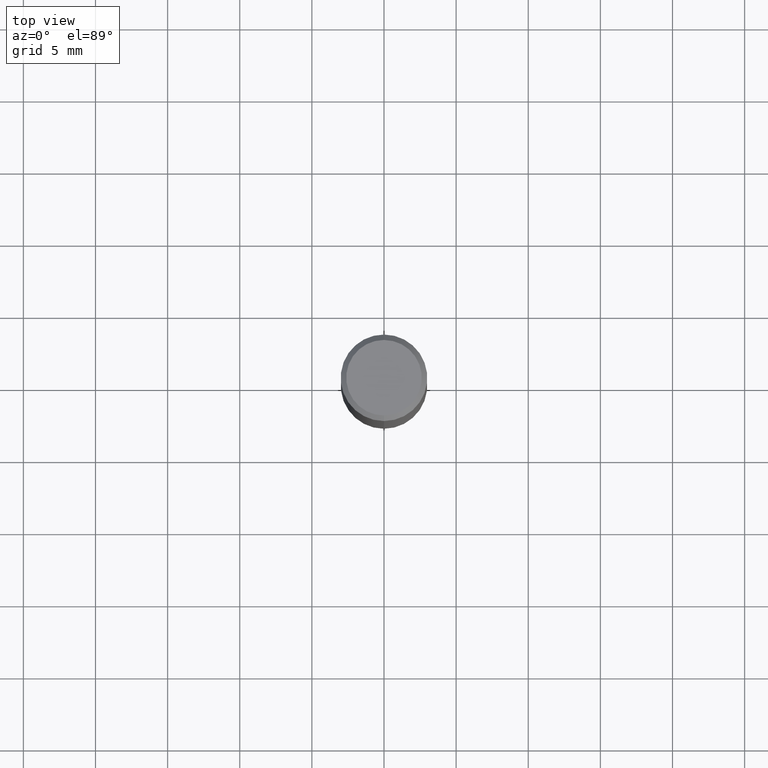
[diagram: clean part render]
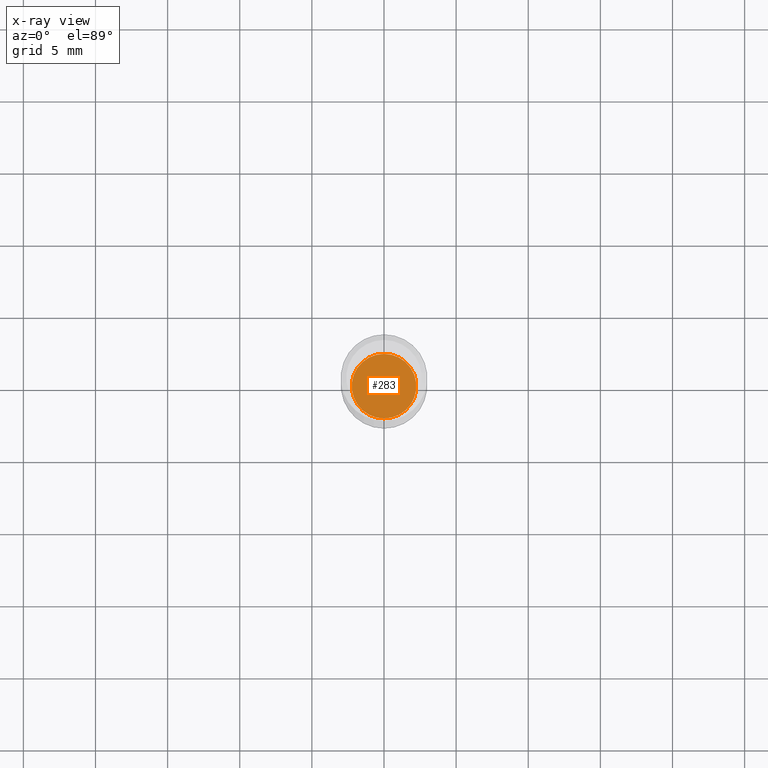
[diagram: x-ray — body ghosted, one internal face saturated and labeled with its STEP entity id]
A machine part, top view, then the same camera in x-ray: the body is ghosted and one INTERNAL B-rep face — a face not visible from any outside direction — is saturated and labeled: STEP entity #283.
In plain terms, the highlighted planar face has unit normal (-0, 0, 1).
Its self-contained STEP definition (entity closure, byte-faithful):
#28 = CARTESIAN_POINT ( 'NONE',  ( 3.274076452005480614E-29, -4.672877915302496500E-15, -1.338600000000000012 ) ) ;
#32 = AXIS2_PLACEMENT_3D ( 'NONE', #28, #303, #378 ) ;
#44 = DIRECTION ( 'NONE',  ( -2.445896049608158074E-29, 3.490869501944193410E-15, 1.000000000000000000 ) ) ;
#46 = CARTESIAN_POINT ( 'NONE',  ( -6.151990119041272080E-16, -0.08810000000000467457, -1.338599999999999790 ) ) ;
#51 = VERTEX_POINT ( 'NONE', #46 ) ;
#59 = FACE_OUTER_BOUND ( 'NONE', #296, .T. ) ;
#79 = CARTESIAN_POINT ( 'NONE',  ( 3.274076452005480614E-29, -4.672877915302496500E-15, -1.338600000000000012 ) ) ;
#111 = VERTEX_POINT ( 'NONE', #397 ) ;
#112 = CIRCLE ( 'NONE', #233, 0.08809999999999999776 ) ;
#118 = DIRECTION ( 'NONE',  ( -2.445896049608158074E-29, 3.490869501944193410E-15, 1.000000000000000000 ) ) ;
#135 = EDGE_CURVE ( 'NONE', #51, #111, #112, .T. ) ;
#139 = ORIENTED_EDGE ( 'NONE', *, *, #135, .F. ) ;
#142 = EDGE_CURVE ( 'NONE', #111, #51, #285, .T. ) ;
#147 = PLANE ( 'NONE',  #32 ) ;
#233 = AXIS2_PLACEMENT_3D ( 'NONE', #315, #118, #277 ) ;
#277 = DIRECTION ( 'NONE',  ( -6.982962677686265133E-15, -1.000000000000000000, 3.100849027995758518E-15 ) ) ;
#283 = ADVANCED_FACE ( 'NONE', ( #59 ), #147, .F. ) ;
#285 = CIRCLE ( 'NONE', #431, 0.08809999999999999776 ) ;
#296 = EDGE_LOOP ( 'NONE', ( #139, #310 ) ) ;
#303 = DIRECTION ( 'NONE',  ( -2.445896049608157514E-29, 3.490869501944193805E-15, 1.000000000000000000 ) ) ;
#310 = ORIENTED_EDGE ( 'NONE', *, *, #142, .F. ) ;
#315 = CARTESIAN_POINT ( 'NONE',  ( 3.274076452005480614E-29, -4.672877915302496500E-15, -1.338600000000000012 ) ) ;
#317 = DIRECTION ( 'NONE',  ( -6.982962677686265133E-15, -1.000000000000000000, 3.100849027995758518E-15 ) ) ;
#378 = DIRECTION ( 'NONE',  ( -6.982962677686265922E-15, -1.000000000000000000, 3.490869501944193805E-15 ) ) ;
#397 = CARTESIAN_POINT ( 'NONE',  ( 6.277645070440807445E-16, 0.08809999999999532094, -1.338600000000000234 ) ) ;
#431 = AXIS2_PLACEMENT_3D ( 'NONE', #79, #44, #317 ) ;